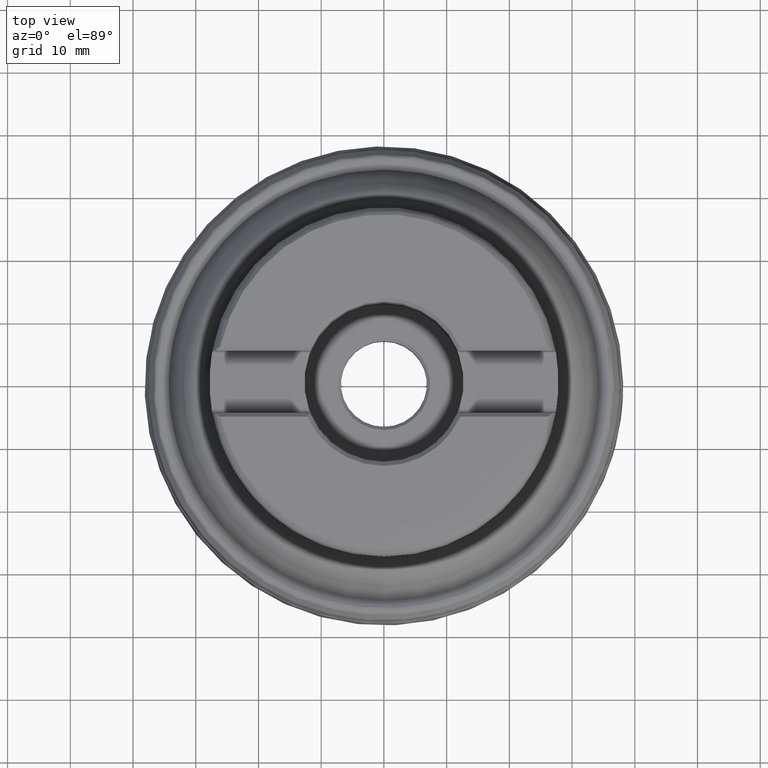
[diagram: clean part render]
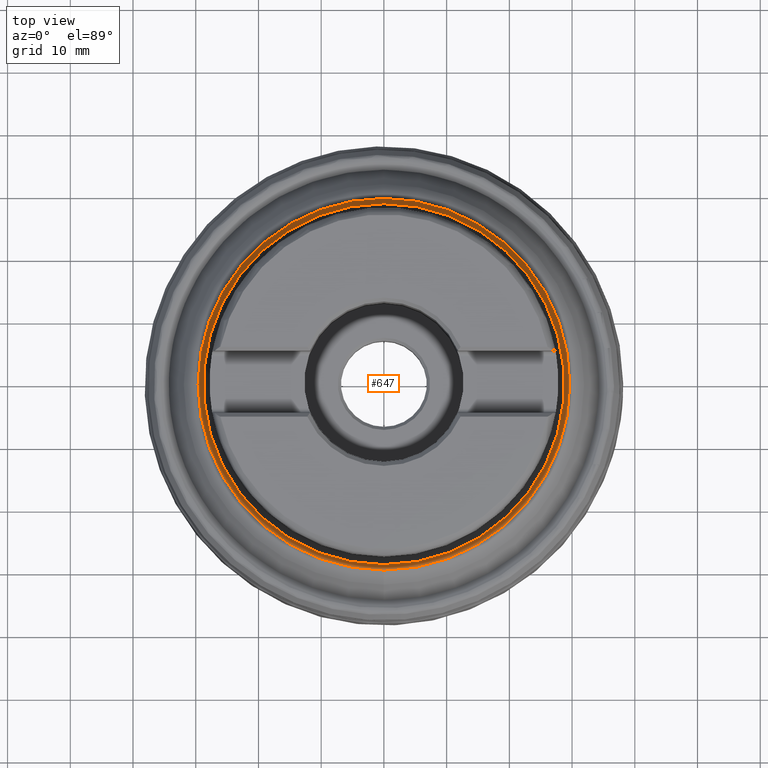
[diagram: same view with one face highlighted and labeled with its STEP entity id]
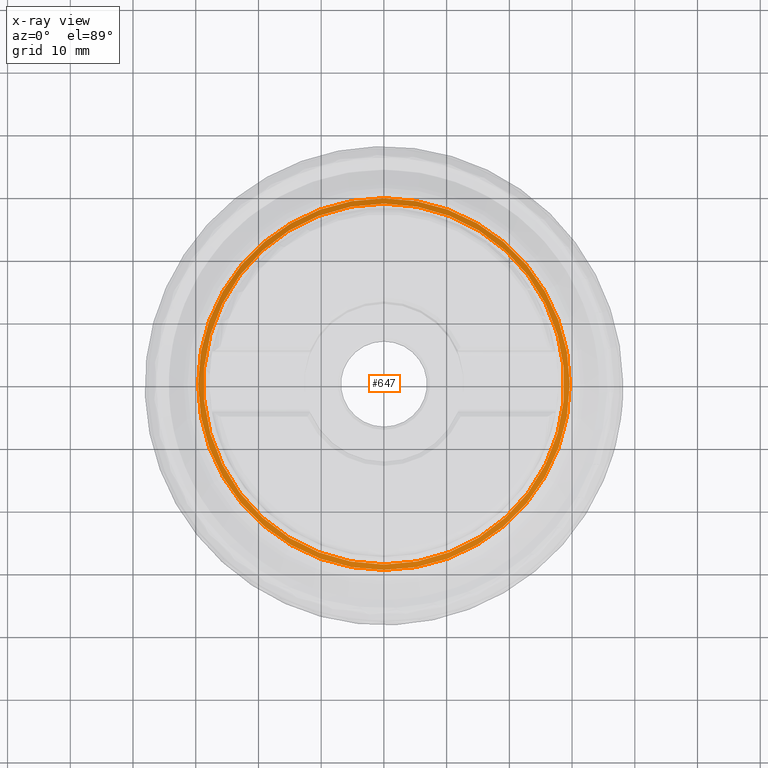
[diagram: x-ray of the same camera — body ghosted, the highlighted face saturated]
A machine part, top view. The second image highlights one B-rep face of the part: STEP entity #647.
The next image is the same camera in x-ray: the body ghosted, the highlighted face saturated — about 0% of this face is hidden behind the body in this view.
In plain terms, the highlighted conical surface has half-angle 66 deg.
Its self-contained STEP definition (entity closure, byte-faithful):
#396=CONICAL_SURFACE('',#4628,31.1161825423602,66.);
#513=FACE_BOUND('',#1231,.T.);
#514=FACE_BOUND('',#1232,.T.);
#647=ADVANCED_FACE('',(#513,#514),#396,.T.);
#1231=EDGE_LOOP('',(#1796));
#1232=EDGE_LOOP('',(#1797));
#1614=CIRCLE('',#4626,29.6320379793993);
#1615=CIRCLE('',#4627,28.7797900707726);
#1796=ORIENTED_EDGE('',*,*,#3500,.T.);
#1797=ORIENTED_EDGE('',*,*,#3501,.T.);
#3092=VERTEX_POINT('',#5799);
#3093=VERTEX_POINT('',#5801);
#3500=EDGE_CURVE('',#3092,#3092,#1614,.T.);
#3501=EDGE_CURVE('',#3093,#3093,#1615,.T.);
#4626=AXIS2_PLACEMENT_3D('',#5798,#4880,#4881);
#4627=AXIS2_PLACEMENT_3D('',#5800,#4882,#4883);
#4628=AXIS2_PLACEMENT_3D('',#5802,#4884,#4885);
#4880=DIRECTION('',(0.,1.17145536458252E-15,1.));
#4881=DIRECTION('',(0.,-1.,1.17084317803778E-15));
#4882=DIRECTION('',(0.,-1.17145536458252E-15,-1.));
#4883=DIRECTION('',(0.,1.,-1.20551503100678E-15));
#4884=DIRECTION('',(0.,-1.17145536458252E-15,-1.));
#4885=DIRECTION('',(0.,1.,-1.16097540567239E-15));
#5798=CARTESIAN_POINT('',(0.,2.53280806839991E-14,21.6210377704193));
#5799=CARTESIAN_POINT('',(0.,-29.6320379793992,21.6210377704193));
#5800=CARTESIAN_POINT('',(0.,2.57725838177476E-14,22.0004829863341));
#5801=CARTESIAN_POINT('',(0.,28.7797900707726,22.0004829863341));
#5802=CARTESIAN_POINT('',(0.,2.45540020356453E-14,20.9602540378444));